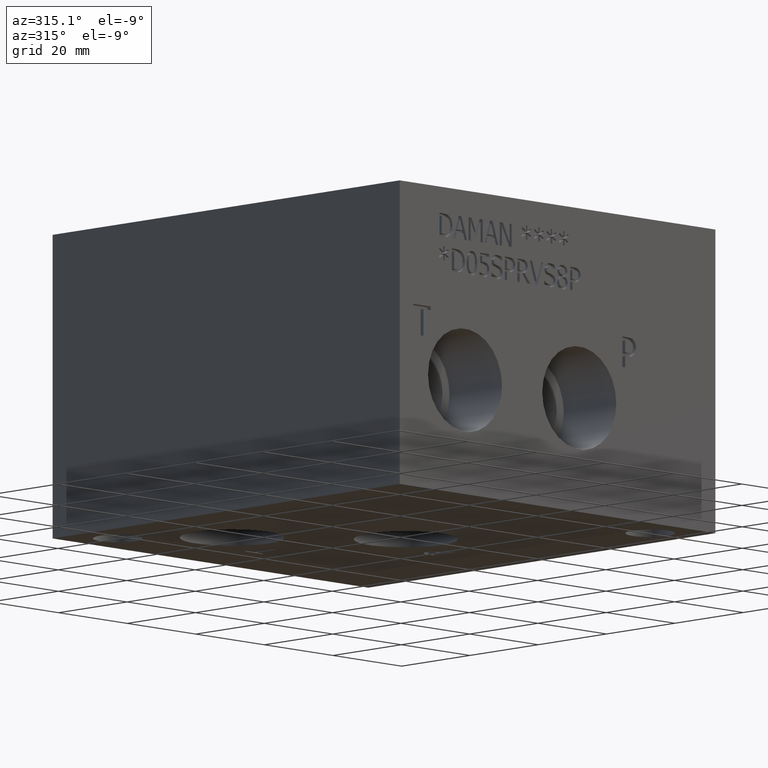
[diagram: clean part render]
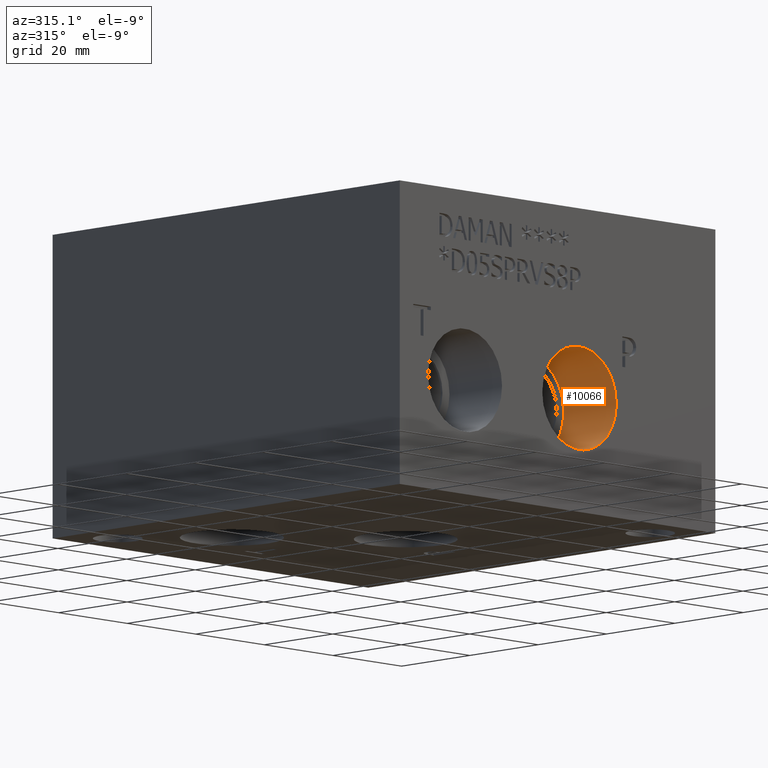
[diagram: same view with one face highlighted and labeled with its STEP entity id]
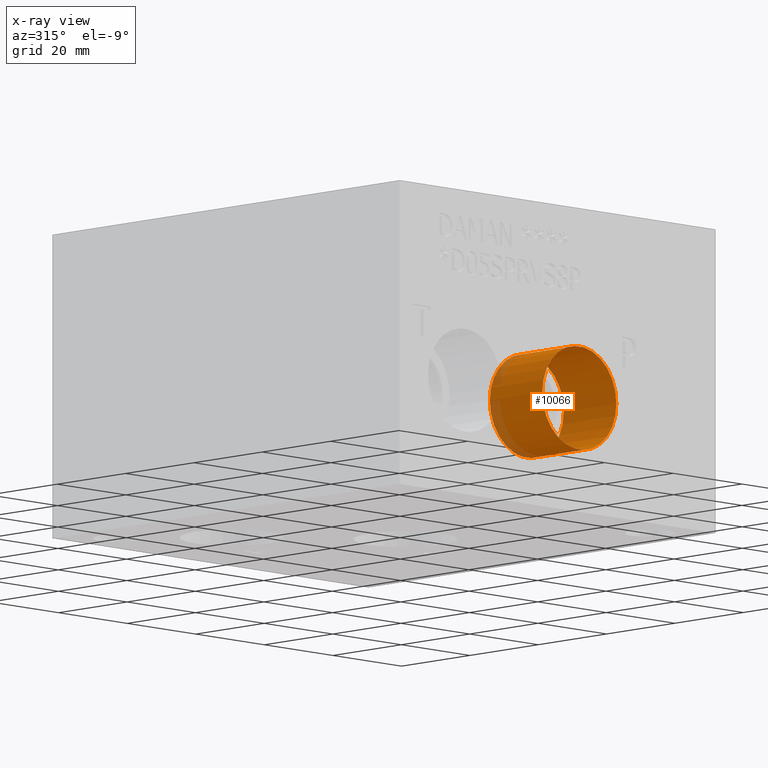
[diagram: x-ray of the same camera — body ghosted, the highlighted face saturated]
A machine part, auxiliary view. The second image highlights one B-rep face of the part: STEP entity #10066.
The next image is the same camera in x-ray: the body ghosted, the highlighted face saturated — about 9% of this face is hidden behind the body in this view.
In plain terms, the highlighted cylindrical surface (bore or boss wall) has radius 10.795 mm, axis along (0, -1, 0).
Its self-contained STEP definition (entity closure, byte-faithful):
#592=CYLINDRICAL_SURFACE('',#10499,10.795);
#1467=FACE_OUTER_BOUND('',#2035,.T.);
#2035=EDGE_LOOP('',(#9306,#9307,#9308,#9309,#9310,#9311));
#3035=LINE('',#17117,#4003);
#4003=VECTOR('',#12294,10.795);
#4058=CIRCLE('',#10240,10.795);
#4059=CIRCLE('',#10241,10.795);
#4091=CIRCLE('',#10496,10.795);
#4092=CIRCLE('',#10497,10.795);
#4981=VERTEX_POINT('',#15457);
#4982=VERTEX_POINT('',#15458);
#5323=VERTEX_POINT('',#17110);
#5324=VERTEX_POINT('',#17111);
#6116=EDGE_CURVE('',#4981,#4982,#4058,.T.);
#6117=EDGE_CURVE('',#4982,#4981,#4059,.T.);
#6684=EDGE_CURVE('',#5323,#5324,#4091,.T.);
#6685=EDGE_CURVE('',#5324,#5323,#4092,.T.);
#6687=EDGE_CURVE('',#4982,#5324,#3035,.T.);
#9306=ORIENTED_EDGE('',*,*,#6116,.F.);
#9307=ORIENTED_EDGE('',*,*,#6117,.F.);
#9308=ORIENTED_EDGE('',*,*,#6687,.T.);
#9309=ORIENTED_EDGE('',*,*,#6684,.F.);
#9310=ORIENTED_EDGE('',*,*,#6685,.F.);
#9311=ORIENTED_EDGE('',*,*,#6687,.F.);
#10066=ADVANCED_FACE('',(#1467),#592,.F.);
#10240=AXIS2_PLACEMENT_3D('',#15459,#11311,#11312);
#10241=AXIS2_PLACEMENT_3D('',#15460,#11313,#11314);
#10496=AXIS2_PLACEMENT_3D('',#17112,#12286,#12287);
#10497=AXIS2_PLACEMENT_3D('',#17113,#12288,#12289);
#10499=AXIS2_PLACEMENT_3D('',#17116,#12292,#12293);
#11311=DIRECTION('center_axis',(0.,1.,0.));
#11312=DIRECTION('ref_axis',(1.,0.,0.));
#11313=DIRECTION('center_axis',(0.,1.,0.));
#11314=DIRECTION('ref_axis',(1.,0.,0.));
#12286=DIRECTION('center_axis',(0.,-1.,0.));
#12287=DIRECTION('ref_axis',(1.,0.,0.));
#12288=DIRECTION('center_axis',(0.,-1.,0.));
#12289=DIRECTION('ref_axis',(1.,0.,0.));
#12292=DIRECTION('center_axis',(0.,-1.,0.));
#12293=DIRECTION('ref_axis',(1.,0.,0.));
#12294=DIRECTION('',(0.,1.,0.));
#15457=CARTESIAN_POINT('',(63.1698,0.,23.8252));
#15458=CARTESIAN_POINT('',(41.5798,0.,23.8252));
#15459=CARTESIAN_POINT('Origin',(52.3748,0.,23.8252));
#15460=CARTESIAN_POINT('Origin',(52.3748,0.,23.8252));
#17110=CARTESIAN_POINT('',(63.1698,15.367,23.8252));
#17111=CARTESIAN_POINT('',(41.5798,15.367,23.8252));
#17112=CARTESIAN_POINT('Origin',(52.3748,15.367,23.8252));
#17113=CARTESIAN_POINT('Origin',(52.3748,15.367,23.8252));
#17116=CARTESIAN_POINT('Origin',(52.3748,7.6835,23.8252));
#17117=CARTESIAN_POINT('',(41.5798,7.6835,23.8252));